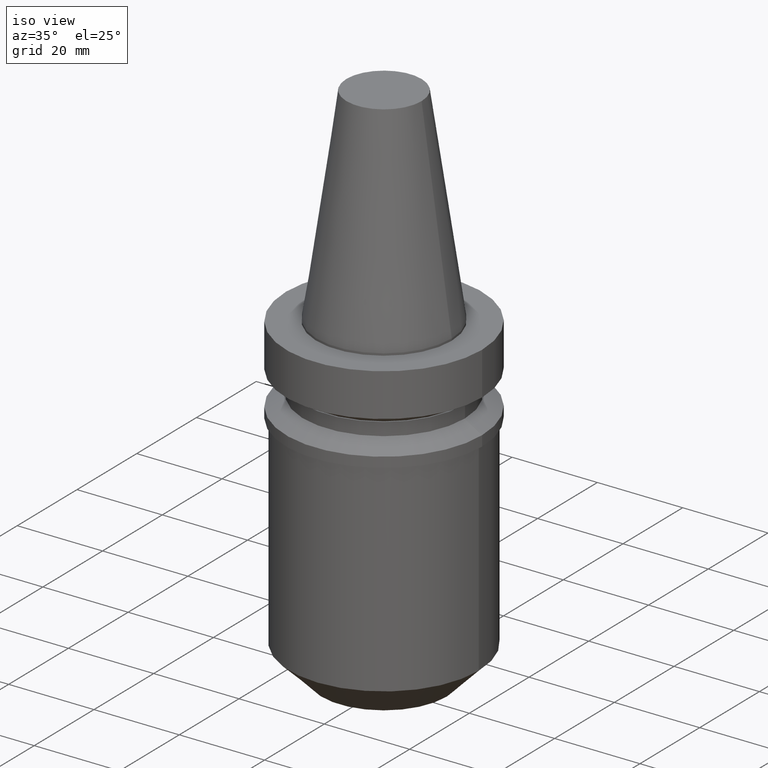
[diagram: clean part render]
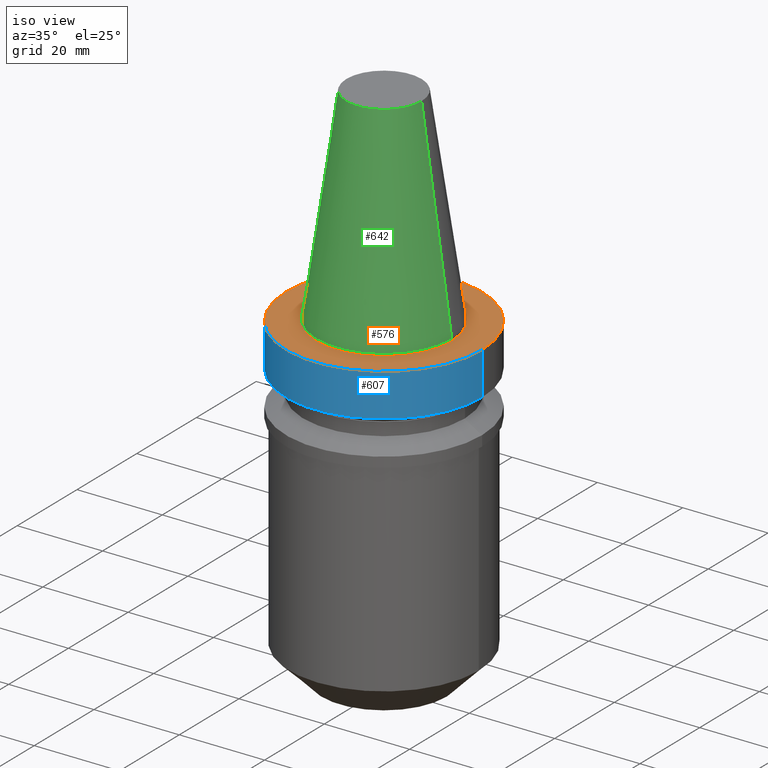
[diagram: same view with three faces highlighted in distinct colors, each labeled with its STEP entity id]
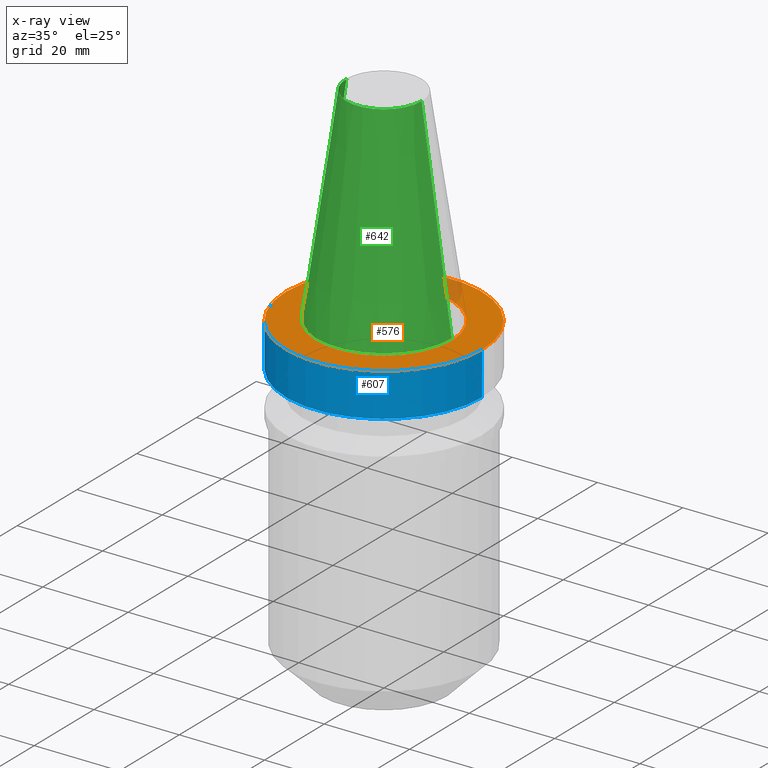
[diagram: x-ray of the same camera — body ghosted, the three highlighted faces saturated]
A machine part, iso view with three faces highlighted in distinct colors.
The next image is the same camera in x-ray (body ghosted, the three faces saturated) — at least one of them is partly hidden behind the body in this view.
Their STEP definitions:

[orange] entity #576 — the highlighted planar face has unit normal (0, 0, -1).
#3 = VERTEX_POINT ( 'NONE', #55 ) ;
#6 = AXIS2_PLACEMENT_3D ( 'NONE', #618, #242, #553 ) ;
#11 = DIRECTION ( 'NONE',  ( -0.000000000000000000, -0.000000000000000000, 1.000000000000000000 ) ) ;
#15 = AXIS2_PLACEMENT_3D ( 'NONE', #455, #93, #159 ) ;
#35 = CARTESIAN_POINT ( 'NONE',  ( -23.00000000000000000, 2.816687638038912746E-15, -0.5000000000000004441 ) ) ;
#55 = CARTESIAN_POINT ( 'NONE',  ( 15.87500000000000000, 0.000000000000000000, -0.5000000000000004441 ) ) ;
#93 = DIRECTION ( 'NONE',  ( -0.000000000000000000, -0.000000000000000000, 1.000000000000000000 ) ) ;
#94 = EDGE_CURVE ( 'NONE', #3, #769, #355, .T. ) ;
#109 = CIRCLE ( 'NONE', #547, 23.00000000000000000 ) ;
#134 = CARTESIAN_POINT ( 'NONE',  ( 0.000000000000000000, 0.000000000000000000, -0.5000000000000004441 ) ) ;
#137 = EDGE_CURVE ( 'NONE', #635, #343, #281, .T. ) ;
#138 = CARTESIAN_POINT ( 'NONE',  ( 0.000000000000000000, 0.000000000000000000, -0.5000000000000004441 ) ) ;
#155 = DIRECTION ( 'NONE',  ( -1.000000000000000000, 0.000000000000000000, -0.000000000000000000 ) ) ;
#159 = DIRECTION ( 'NONE',  ( 1.000000000000000000, 0.000000000000000000, 0.000000000000000000 ) ) ;
#195 = DIRECTION ( 'NONE',  ( 1.000000000000000000, 0.000000000000000000, 0.000000000000000000 ) ) ;
#201 = ORIENTED_EDGE ( 'NONE', *, *, #589, .F. ) ;
#217 = PLANE ( 'NONE',  #645 ) ;
#221 = EDGE_CURVE ( 'NONE', #343, #635, #109, .T. ) ;
#242 = DIRECTION ( 'NONE',  ( -0.000000000000000000, -0.000000000000000000, 1.000000000000000000 ) ) ;
#258 = ORIENTED_EDGE ( 'NONE', *, *, #221, .T. ) ;
#277 = FACE_OUTER_BOUND ( 'NONE', #588, .T. ) ;
#281 = CIRCLE ( 'NONE', #6, 23.00000000000000000 ) ;
#299 = CIRCLE ( 'NONE', #15, 15.87500000000000000 ) ;
#312 = DIRECTION ( 'NONE',  ( 1.000000000000000000, 0.000000000000000000, 0.000000000000000000 ) ) ;
#343 = VERTEX_POINT ( 'NONE', #35 ) ;
#355 = CIRCLE ( 'NONE', #475, 15.87500000000000000 ) ;
#359 = ORIENTED_EDGE ( 'NONE', *, *, #137, .T. ) ;
#383 = CARTESIAN_POINT ( 'NONE',  ( 23.00000000000000000, 0.000000000000000000, -0.5000000000000004441 ) ) ;
#455 = CARTESIAN_POINT ( 'NONE',  ( 0.000000000000000000, 0.000000000000000000, -0.5000000000000004441 ) ) ;
#462 = CARTESIAN_POINT ( 'NONE',  ( 0.000000000000000000, 23.00000000000000000, -0.4999999999999995559 ) ) ;
#475 = AXIS2_PLACEMENT_3D ( 'NONE', #138, #11, #312 ) ;
#478 = ORIENTED_EDGE ( 'NONE', *, *, #94, .F. ) ;
#493 = CARTESIAN_POINT ( 'NONE',  ( -15.87500000000000000, 1.944126793646423238E-15, -0.5000000000000004441 ) ) ;
#517 = DIRECTION ( 'NONE',  ( 0.000000000000000000, 0.000000000000000000, -1.000000000000000000 ) ) ;
#522 = FACE_BOUND ( 'NONE', #775, .T. ) ;
#547 = AXIS2_PLACEMENT_3D ( 'NONE', #134, #737, #195 ) ;
#553 = DIRECTION ( 'NONE',  ( 1.000000000000000000, 0.000000000000000000, 0.000000000000000000 ) ) ;
#576 = ADVANCED_FACE ( 'NONE', ( #522, #277 ), #217, .F. ) ;
#588 = EDGE_LOOP ( 'NONE', ( #359, #258 ) ) ;
#589 = EDGE_CURVE ( 'NONE', #769, #3, #299, .T. ) ;
#618 = CARTESIAN_POINT ( 'NONE',  ( 0.000000000000000000, 0.000000000000000000, -0.5000000000000004441 ) ) ;
#635 = VERTEX_POINT ( 'NONE', #383 ) ;
#645 = AXIS2_PLACEMENT_3D ( 'NONE', #462, #517, #155 ) ;
#737 = DIRECTION ( 'NONE',  ( -0.000000000000000000, -0.000000000000000000, 1.000000000000000000 ) ) ;
#769 = VERTEX_POINT ( 'NONE', #493 ) ;
#775 = EDGE_LOOP ( 'NONE', ( #478, #201 ) ) ;

[blue] entity #607 — the highlighted cylindrical surface (partial cylindrical patch) has radius 23 mm, axis along (-0, -0, 1).
#35 = CARTESIAN_POINT ( 'NONE',  ( -23.00000000000000000, 2.816687638038912746E-15, -0.5000000000000004441 ) ) ;
#37 = ORIENTED_EDGE ( 'NONE', *, *, #221, .F. ) ;
#75 = VECTOR ( 'NONE', #319, 1000.000000000000000 ) ;
#102 = VECTOR ( 'NONE', #497, 1000.000000000000000 ) ;
#109 = CIRCLE ( 'NONE', #547, 23.00000000000000000 ) ;
#119 = EDGE_CURVE ( 'NONE', #638, #343, #667, .T. ) ;
#130 = DIRECTION ( 'NONE',  ( 1.000000000000000000, 0.000000000000000000, 0.000000000000000000 ) ) ;
#134 = CARTESIAN_POINT ( 'NONE',  ( 0.000000000000000000, 0.000000000000000000, -0.5000000000000004441 ) ) ;
#195 = DIRECTION ( 'NONE',  ( 1.000000000000000000, 0.000000000000000000, 0.000000000000000000 ) ) ;
#221 = EDGE_CURVE ( 'NONE', #343, #635, #109, .T. ) ;
#225 = EDGE_LOOP ( 'NONE', ( #560, #484, #394, #37 ) ) ;
#243 = CARTESIAN_POINT ( 'NONE',  ( 0.000000000000000000, 0.000000000000000000, -10.60014200631680126 ) ) ;
#256 = CARTESIAN_POINT ( 'NONE',  ( 0.000000000000000000, 0.000000000000000000, 48.39999999999998437 ) ) ;
#260 = DIRECTION ( 'NONE',  ( 1.000000000000000000, 0.000000000000000000, 0.000000000000000000 ) ) ;
#267 = CARTESIAN_POINT ( 'NONE',  ( -23.00000000000000711, 2.816687638038913141E-15, -10.60014200631680126 ) ) ;
#274 = AXIS2_PLACEMENT_3D ( 'NONE', #243, #360, #130 ) ;
#284 = VERTEX_POINT ( 'NONE', #337 ) ;
#319 = DIRECTION ( 'NONE',  ( -0.000000000000000000, -0.000000000000000000, 1.000000000000000000 ) ) ;
#337 = CARTESIAN_POINT ( 'NONE',  ( 23.00000000000000711, 0.000000000000000000, -10.60014200631680126 ) ) ;
#343 = VERTEX_POINT ( 'NONE', #35 ) ;
#360 = DIRECTION ( 'NONE',  ( -0.000000000000000000, -0.000000000000000000, 1.000000000000000000 ) ) ;
#383 = CARTESIAN_POINT ( 'NONE',  ( 23.00000000000000000, 0.000000000000000000, -0.5000000000000004441 ) ) ;
#388 = CIRCLE ( 'NONE', #274, 23.00000000000000711 ) ;
#394 = ORIENTED_EDGE ( 'NONE', *, *, #561, .T. ) ;
#484 = ORIENTED_EDGE ( 'NONE', *, *, #744, .T. ) ;
#497 = DIRECTION ( 'NONE',  ( -0.000000000000000000, -0.000000000000000000, 1.000000000000000000 ) ) ;
#501 = CARTESIAN_POINT ( 'NONE',  ( -23.00000000000000355, 2.816687638038912746E-15, 48.39999999999998437 ) ) ;
#513 = FACE_OUTER_BOUND ( 'NONE', #225, .T. ) ;
#547 = AXIS2_PLACEMENT_3D ( 'NONE', #134, #737, #195 ) ;
#554 = AXIS2_PLACEMENT_3D ( 'NONE', #256, #743, #260 ) ;
#560 = ORIENTED_EDGE ( 'NONE', *, *, #119, .F. ) ;
#561 = EDGE_CURVE ( 'NONE', #284, #635, #731, .T. ) ;
#580 = CYLINDRICAL_SURFACE ( 'NONE', #554, 23.00000000000000355 ) ;
#607 = ADVANCED_FACE ( 'NONE', ( #513 ), #580, .T. ) ;
#617 = CARTESIAN_POINT ( 'NONE',  ( 23.00000000000000355, 0.000000000000000000, 48.39999999999998437 ) ) ;
#635 = VERTEX_POINT ( 'NONE', #383 ) ;
#638 = VERTEX_POINT ( 'NONE', #267 ) ;
#667 = LINE ( 'NONE', #501, #75 ) ;
#731 = LINE ( 'NONE', #617, #102 ) ;
#737 = DIRECTION ( 'NONE',  ( -0.000000000000000000, -0.000000000000000000, 1.000000000000000000 ) ) ;
#743 = DIRECTION ( 'NONE',  ( -0.000000000000000000, -0.000000000000000000, 1.000000000000000000 ) ) ;
#744 = EDGE_CURVE ( 'NONE', #638, #284, #388, .T. ) ;

[green] entity #642 — the highlighted conical surface has half-angle 8.297 deg.
#56 = CARTESIAN_POINT ( 'NONE',  ( 15.87500000000000000, 1.944126793646423238E-15, 0.000000000000000000 ) ) ;
#90 = VECTOR ( 'NONE', #347, 1000.000000000000114 ) ;
#96 = ORIENTED_EDGE ( 'NONE', *, *, #630, .F. ) ;
#98 = DIRECTION ( 'NONE',  ( 0.000000000000000000, 0.000000000000000000, -1.000000000000000000 ) ) ;
#103 = DIRECTION ( 'NONE',  ( 1.000000000000000000, 0.000000000000000000, 0.000000000000000000 ) ) ;
#116 = LINE ( 'NONE', #56, #189 ) ;
#126 = CIRCLE ( 'NONE', #565, 15.87500000000000000 ) ;
#180 = CARTESIAN_POINT ( 'NONE',  ( -15.87500000000000000, 0.000000000000000000, 0.000000000000000000 ) ) ;
#189 = VECTOR ( 'NONE', #288, 1000.000000000000114 ) ;
#209 = CARTESIAN_POINT ( 'NONE',  ( 0.000000000000000000, 0.000000000000000000, 0.000000000000000000 ) ) ;
#214 = ORIENTED_EDGE ( 'NONE', *, *, #459, .F. ) ;
#215 = CONICAL_SURFACE ( 'NONE', #373, 15.87500000000000000, 0.1448138426689024039 ) ;
#271 = DIRECTION ( 'NONE',  ( -0.000000000000000000, -0.000000000000000000, 1.000000000000000000 ) ) ;
#288 = DIRECTION ( 'NONE',  ( 0.1443082234293875943, 1.767266039134405996E-17, -0.9895327870518761948 ) ) ;
#327 = CARTESIAN_POINT ( 'NONE',  ( 0.000000000000000000, 0.000000000000000000, 0.000000000000000000 ) ) ;
#347 = DIRECTION ( 'NONE',  ( -0.1443082234293875943, 0.000000000000000000, -0.9895327870518761948 ) ) ;
#370 = CARTESIAN_POINT ( 'NONE',  ( 8.816600212367498912, 1.511924458295098338E-15, 48.39999999999999858 ) ) ;
#373 = AXIS2_PLACEMENT_3D ( 'NONE', #209, #98, #504 ) ;
#376 = EDGE_LOOP ( 'NONE', ( #214, #96, #723, #525 ) ) ;
#381 = VERTEX_POINT ( 'NONE', #601 ) ;
#417 = LINE ( 'NONE', #180, #90 ) ;
#444 = EDGE_CURVE ( 'NONE', #682, #722, #417, .T. ) ;
#459 = EDGE_CURVE ( 'NONE', #506, #381, #116, .T. ) ;
#488 = CARTESIAN_POINT ( 'NONE',  ( -15.87500000000000000, 0.000000000000000000, 0.000000000000000000 ) ) ;
#504 = DIRECTION ( 'NONE',  ( -1.000000000000000000, 0.000000000000000000, 0.000000000000000000 ) ) ;
#506 = VERTEX_POINT ( 'NONE', #370 ) ;
#525 = ORIENTED_EDGE ( 'NONE', *, *, #654, .T. ) ;
#540 = CARTESIAN_POINT ( 'NONE',  ( -8.816600212367498912, 0.000000000000000000, 48.39999999999999858 ) ) ;
#565 = AXIS2_PLACEMENT_3D ( 'NONE', #327, #570, #103 ) ;
#570 = DIRECTION ( 'NONE',  ( -0.000000000000000000, -0.000000000000000000, 1.000000000000000000 ) ) ;
#575 = CARTESIAN_POINT ( 'NONE',  ( 0.000000000000000000, 0.000000000000000000, 48.39999999999999858 ) ) ;
#601 = CARTESIAN_POINT ( 'NONE',  ( 15.87500000000000000, 1.944126793646423238E-15, 0.000000000000000000 ) ) ;
#630 = EDGE_CURVE ( 'NONE', #682, #506, #729, .T. ) ;
#640 = FACE_OUTER_BOUND ( 'NONE', #376, .T. ) ;
#642 = ADVANCED_FACE ( 'NONE', ( #640 ), #215, .T. ) ;
#654 = EDGE_CURVE ( 'NONE', #722, #381, #126, .T. ) ;
#682 = VERTEX_POINT ( 'NONE', #540 ) ;
#684 = DIRECTION ( 'NONE',  ( 1.000000000000000000, 0.000000000000000000, 0.000000000000000000 ) ) ;
#722 = VERTEX_POINT ( 'NONE', #488 ) ;
#723 = ORIENTED_EDGE ( 'NONE', *, *, #444, .T. ) ;
#729 = CIRCLE ( 'NONE', #742, 8.816600212367498912 ) ;
#742 = AXIS2_PLACEMENT_3D ( 'NONE', #575, #271, #684 ) ;